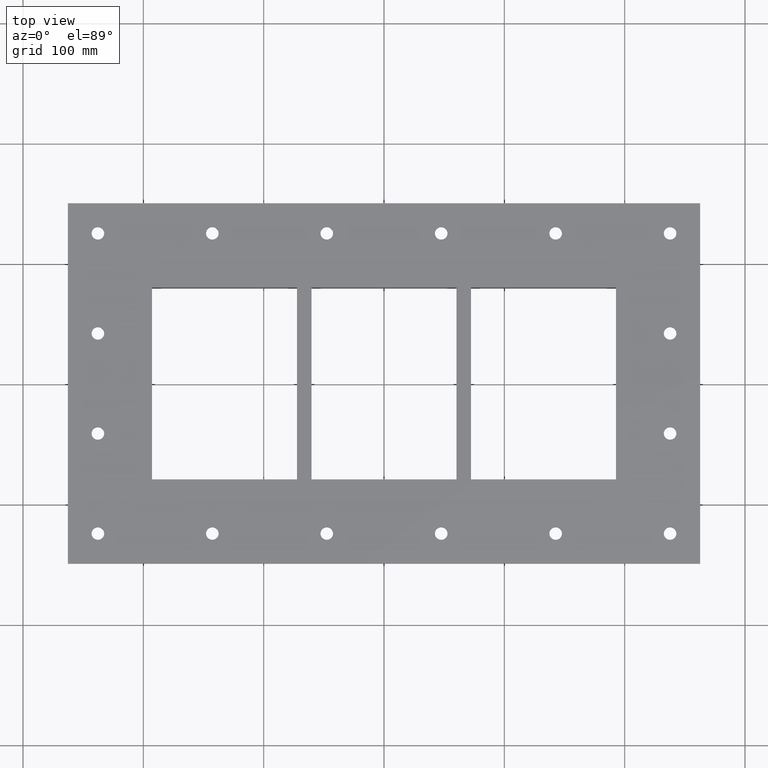
[diagram: clean part render]
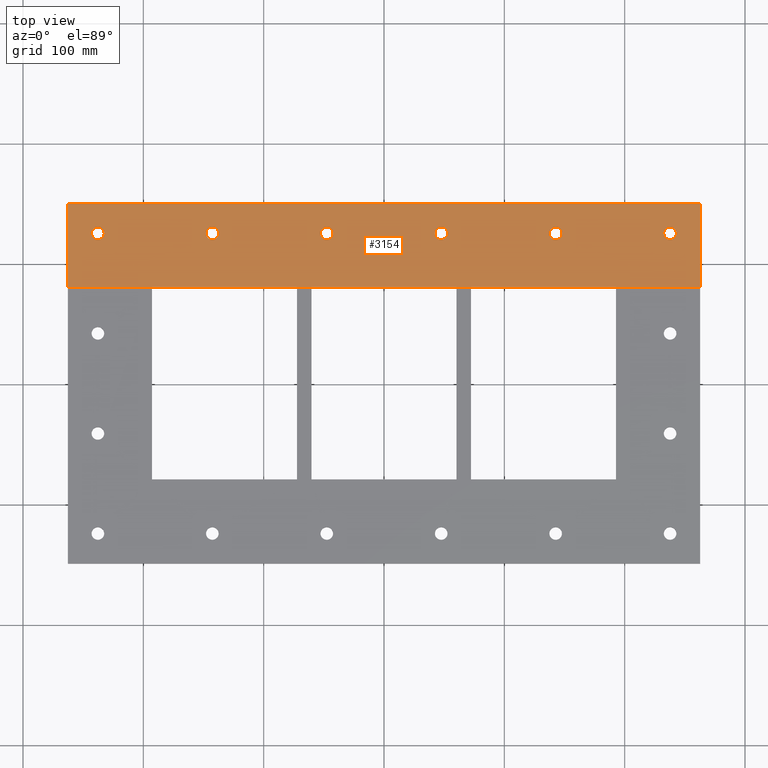
[diagram: same view with one face highlighted and labeled with its STEP entity id]
A machine part, top view. The second image highlights one B-rep face of the part: STEP entity #3154.
In plain terms, the highlighted planar face has unit normal (0, 0, 1).
Its self-contained STEP definition (entity closure, byte-faithful):
#301=FACE_BOUND('',#821,.T.);
#302=FACE_BOUND('',#822,.T.);
#303=FACE_BOUND('',#823,.T.);
#304=FACE_BOUND('',#824,.T.);
#305=FACE_BOUND('',#825,.T.);
#306=FACE_BOUND('',#826,.T.);
#427=CIRCLE('',#3619,5.25);
#428=CIRCLE('',#3620,5.25);
#429=CIRCLE('',#3621,5.25);
#430=CIRCLE('',#3622,5.25);
#431=CIRCLE('',#3623,5.25);
#432=CIRCLE('',#3624,5.25);
#595=FACE_OUTER_BOUND('',#820,.T.);
#820=EDGE_LOOP('',(#2545,#2546,#2547,#2548));
#821=EDGE_LOOP('',(#2549));
#822=EDGE_LOOP('',(#2550));
#823=EDGE_LOOP('',(#2551));
#824=EDGE_LOOP('',(#2552));
#825=EDGE_LOOP('',(#2553));
#826=EDGE_LOOP('',(#2554));
#1102=LINE('',#5189,#1345);
#1103=LINE('',#5191,#1346);
#1104=LINE('',#5193,#1347);
#1105=LINE('',#5194,#1348);
#1345=VECTOR('',#4259,10.);
#1346=VECTOR('',#4260,10.);
#1347=VECTOR('',#4261,10.);
#1348=VECTOR('',#4262,10.);
#1592=VERTEX_POINT('',#5187);
#1593=VERTEX_POINT('',#5188);
#1594=VERTEX_POINT('',#5190);
#1595=VERTEX_POINT('',#5192);
#1596=VERTEX_POINT('',#5195);
#1597=VERTEX_POINT('',#5197);
#1598=VERTEX_POINT('',#5199);
#1599=VERTEX_POINT('',#5201);
#1600=VERTEX_POINT('',#5203);
#1601=VERTEX_POINT('',#5205);
#1935=EDGE_CURVE('',#1592,#1593,#1102,.T.);
#1936=EDGE_CURVE('',#1593,#1594,#1103,.T.);
#1937=EDGE_CURVE('',#1594,#1595,#1104,.T.);
#1938=EDGE_CURVE('',#1595,#1592,#1105,.T.);
#1939=EDGE_CURVE('',#1596,#1596,#427,.T.);
#1940=EDGE_CURVE('',#1597,#1597,#428,.T.);
#1941=EDGE_CURVE('',#1598,#1598,#429,.T.);
#1942=EDGE_CURVE('',#1599,#1599,#430,.T.);
#1943=EDGE_CURVE('',#1600,#1600,#431,.T.);
#1944=EDGE_CURVE('',#1601,#1601,#432,.T.);
#2545=ORIENTED_EDGE('',*,*,#1935,.T.);
#2546=ORIENTED_EDGE('',*,*,#1936,.T.);
#2547=ORIENTED_EDGE('',*,*,#1937,.T.);
#2548=ORIENTED_EDGE('',*,*,#1938,.T.);
#2549=ORIENTED_EDGE('',*,*,#1939,.T.);
#2550=ORIENTED_EDGE('',*,*,#1940,.T.);
#2551=ORIENTED_EDGE('',*,*,#1941,.T.);
#2552=ORIENTED_EDGE('',*,*,#1942,.T.);
#2553=ORIENTED_EDGE('',*,*,#1943,.T.);
#2554=ORIENTED_EDGE('',*,*,#1944,.T.);
#3022=PLANE('',#3618);
#3154=ADVANCED_FACE('',(#595,#301,#302,#303,#304,#305,#306),#3022,.T.);
#3618=AXIS2_PLACEMENT_3D('',#5186,#4257,#4258);
#3619=AXIS2_PLACEMENT_3D('',#5196,#4263,#4264);
#3620=AXIS2_PLACEMENT_3D('',#5198,#4265,#4266);
#3621=AXIS2_PLACEMENT_3D('',#5200,#4267,#4268);
#3622=AXIS2_PLACEMENT_3D('',#5202,#4269,#4270);
#3623=AXIS2_PLACEMENT_3D('',#5204,#4271,#4272);
#3624=AXIS2_PLACEMENT_3D('',#5206,#4273,#4274);
#4257=DIRECTION('center_axis',(0.,0.,1.));
#4258=DIRECTION('ref_axis',(1.,0.,0.));
#4259=DIRECTION('',(-1.18621491779649E-16,1.,0.));
#4260=DIRECTION('',(-1.,-1.35212699478611E-16,0.));
#4261=DIRECTION('',(3.55864475338948E-16,-1.,0.));
#4262=DIRECTION('',(1.,0.,0.));
#4263=DIRECTION('center_axis',(0.,0.,-1.));
#4264=DIRECTION('ref_axis',(1.,0.,0.));
#4265=DIRECTION('center_axis',(0.,0.,-1.));
#4266=DIRECTION('ref_axis',(1.,0.,0.));
#4267=DIRECTION('center_axis',(0.,0.,-1.));
#4268=DIRECTION('ref_axis',(1.,0.,0.));
#4269=DIRECTION('center_axis',(0.,0.,-1.));
#4270=DIRECTION('ref_axis',(1.,0.,0.));
#4271=DIRECTION('center_axis',(0.,0.,-1.));
#4272=DIRECTION('ref_axis',(1.,0.,0.));
#4273=DIRECTION('center_axis',(0.,0.,-1.));
#4274=DIRECTION('ref_axis',(1.,0.,0.));
#5186=CARTESIAN_POINT('Origin',(1.77635683940025E-14,1.77635683940025E-14,
0.));
#5187=CARTESIAN_POINT('',(262.75,79.75,0.));
#5188=CARTESIAN_POINT('',(262.75,149.75,0.));
#5189=CARTESIAN_POINT('',(262.75,-149.75,0.));
#5190=CARTESIAN_POINT('',(-262.75,149.75,0.));
#5191=CARTESIAN_POINT('',(262.75,149.75,0.));
#5192=CARTESIAN_POINT('',(-262.75,79.75,0.));
#5193=CARTESIAN_POINT('',(-262.75,149.75,0.));
#5194=CARTESIAN_POINT('',(-131.375,79.75,0.));
#5195=CARTESIAN_POINT('',(-147.9,124.75,0.));
#5196=CARTESIAN_POINT('Origin',(-142.65,124.75,0.));
#5197=CARTESIAN_POINT('',(-52.7999999999998,124.75,0.));
#5198=CARTESIAN_POINT('Origin',(-47.5499999999998,124.75,0.));
#5199=CARTESIAN_POINT('',(42.3000000000002,124.75,0.));
#5200=CARTESIAN_POINT('Origin',(47.5500000000002,124.75,0.));
#5201=CARTESIAN_POINT('',(137.4,124.75,0.));
#5202=CARTESIAN_POINT('Origin',(142.65,124.75,0.));
#5203=CARTESIAN_POINT('',(232.5,124.75,0.));
#5204=CARTESIAN_POINT('Origin',(237.75,124.75,0.));
#5205=CARTESIAN_POINT('',(-243.,124.75,0.));
#5206=CARTESIAN_POINT('Origin',(-237.75,124.75,0.));